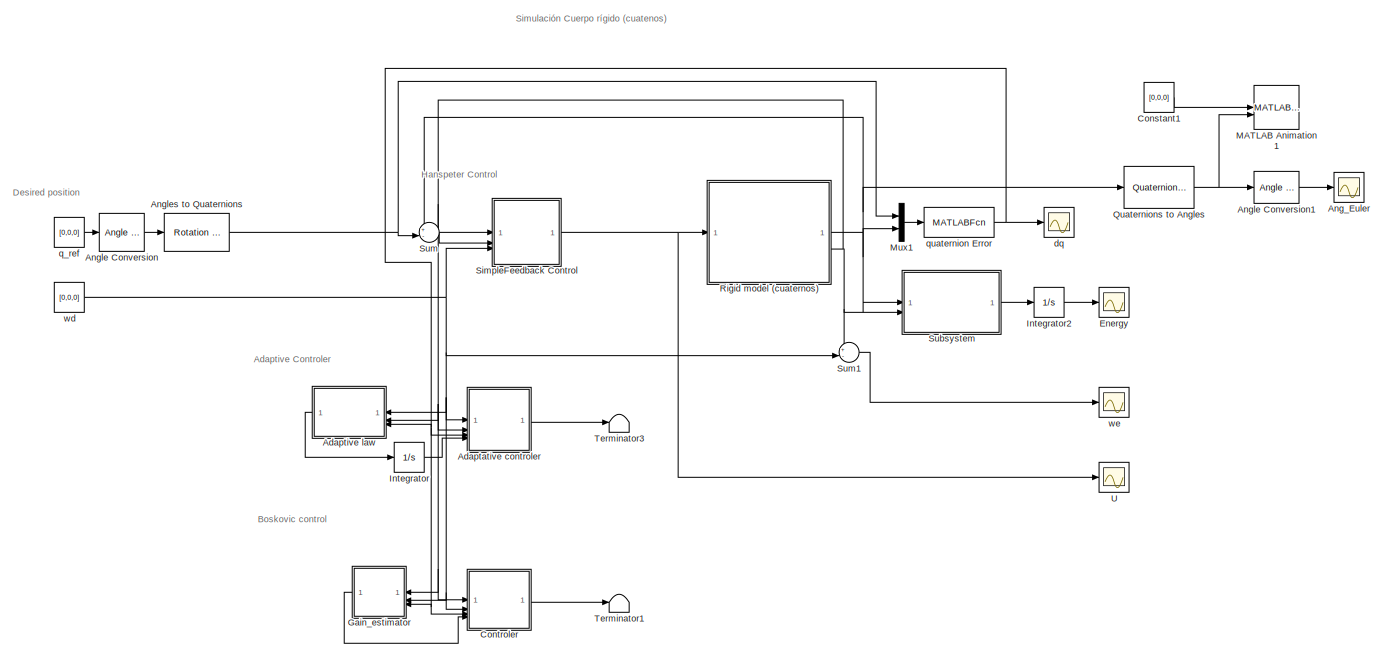
[diagram: root canvas - part 1/3, full width, top band]
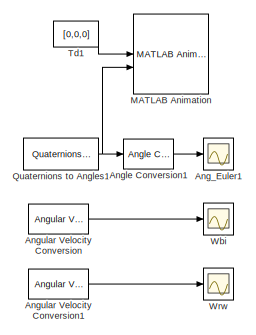
[diagram: root canvas - part 2/3, top right region]
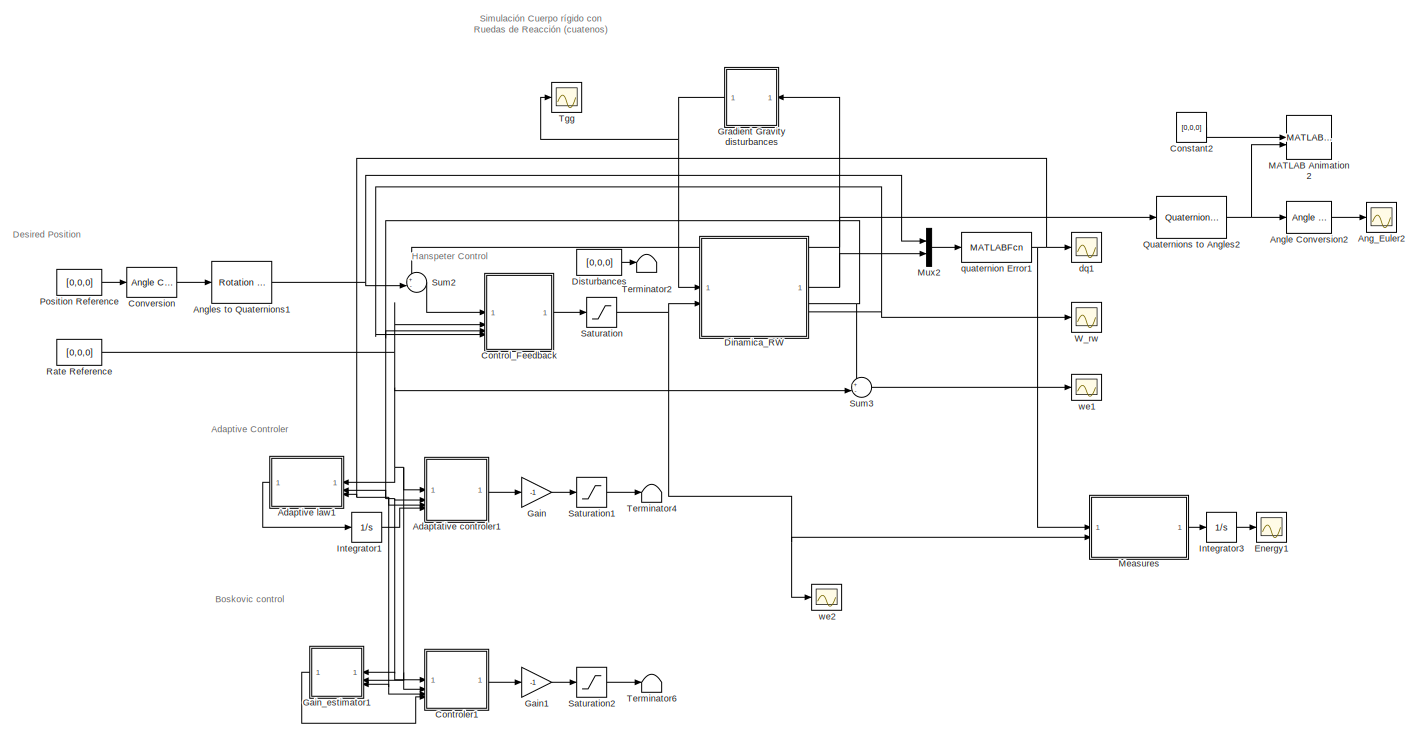
[diagram: root canvas - part 3/3, full width, bottom band]
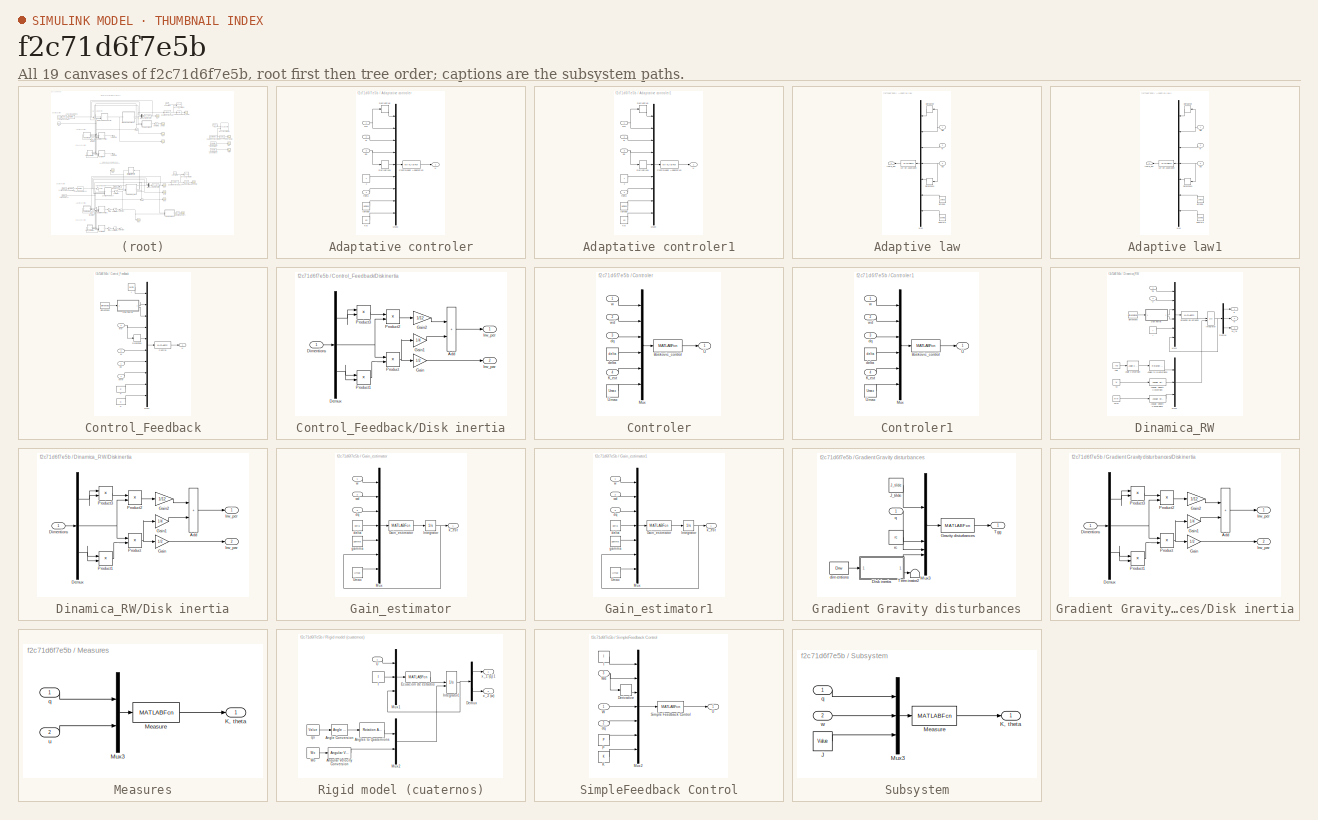
[diagram: thumbnail index - all 19 canvases of the model, root first then tree order]
MODEL slx_f2c71d6f7e5b
KIND model
CONFIG AbsTol = auto
CONFIG EnableMultiTasking = on
CONFIG FixedStep = 0.001
CONFIG MaxStep = auto
CONFIG MinStep = auto
CONFIG RelTol = 1e-3
CONFIG SampleTimeConstraint = Unconstrained
CONFIG SolverName = ode45
CONFIG StartTime = 0.0
CONFIG StopTime = 100
BLOCK [SubSystem] Adaptative controler
  Commented = on
BLOCK [MATLABFcn] Adaptative controler/Controlador Adaptativo
  MATLABFcn = Adaptive_controler(u(1),u(2),u(3),u(4),u(5),u(6),u(7),u(8),u(9),u(10),u(11),u(12),u(13),u(14),u(15),u(16),u(17),u(18),u(19),u(20),u(21),u(22),u(23),u(24),u(25),u(26),u(27),u(28),u(29),u(30),u(31))
BLOCK [Derivative] Adaptative controler/Derivative
BLOCK [Derivative] Adaptative controler/Derivative1
BLOCK [Constant] Adaptative controler/J
  Value = J
BLOCK [Constant] Adaptative controler/Kd
  Value = kd
BLOCK [Mux] Adaptative controler/Mux3
  DisplayOption = bar
  Inputs = 9
BLOCK [Outport] Adaptative controler/U
BLOCK [Inport] Adaptative controler/dq
  Port = 3
BLOCK [Constant] Adaptative controler/lambda
  Value = lambda
BLOCK [Inport] Adaptative controler/theta
  Port = 4
BLOCK [Inport] Adaptative controler/w
  Port = 2
BLOCK [Inport] Adaptative controler/wd
BLOCK [SubSystem] Adaptative controler1
BLOCK [MATLABFcn] Adaptative controler1/Controlador Adaptativo
  MATLABFcn = Adaptive_controler(u(1),u(2),u(3),u(4),u(5),u(6),u(7),u(8),u(9),u(10),u(11),u(12),u(13),u(14),u(15),u(16),u(17),u(18),u(19),u(20),u(21),u(22),u(23),u(24),u(25),u(26),u(27),u(28),u(29),u(30),u(31))
BLOCK [Derivative] Adaptative controler1/Derivative
BLOCK [Derivative] Adaptative controler1/Derivative1
BLOCK [Constant] Adaptative controler1/J
  Value = J
BLOCK [Constant] Adaptative controler1/Kd
  Value = kd
BLOCK [Mux] Adaptative controler1/Mux3
  DisplayOption = bar
  Inputs = 9
BLOCK [Outport] Adaptative controler1/U
BLOCK [Inport] Adaptative controler1/dq
  Port = 3
BLOCK [Constant] Adaptative controler1/lambda
  Value = lambda
BLOCK [Inport] Adaptative controler1/theta
  Port = 4
BLOCK [Inport] Adaptative controler1/w
  Port = 2
BLOCK [Inport] Adaptative controler1/wd
BLOCK [SubSystem] Adaptive law
  Commented = on
BLOCK [Derivative] Adaptive law/Derivative
BLOCK [Derivative] Adaptive law/Derivative1
BLOCK [MATLABFcn] Adaptive law/Ley de Adaptacion
  MATLABFcn = Ley_adaptacion(u(1),u(2),u(3),u(4),u(5),u(6),u(7),u(8),u(9),u(10),u(11),u(12),u(13),u(14),u(15),u(16),u(17),u(18),u(19))
BLOCK [Mux] Adaptive law/Mux
  DisplayOption = bar
  Inputs = 7
BLOCK [Inport] Adaptive law/dq
  Port = 3
BLOCK [Constant] Adaptive law/gamma
  Value = gamma
BLOCK [Constant] Adaptive law/lambda
  Value = Lambda
BLOCK [Outport] Adaptive law/theta_dot
  NameLocation = top
BLOCK [Inport] Adaptive law/w
  Port = 2
BLOCK [Inport] Adaptive law/wd
BLOCK [SubSystem] Adaptive law1
BLOCK [Derivative] Adaptive law1/Derivative
BLOCK [Derivative] Adaptive law1/Derivative1
BLOCK [MATLABFcn] Adaptive law1/Ley de Adaptacion
  MATLABFcn = Ley_adaptacion(u(1),u(2),u(3),u(4),u(5),u(6),u(7),u(8),u(9),u(10),u(11),u(12),u(13),u(14),u(15),u(16),u(17),u(18),u(19))
BLOCK [Mux] Adaptive law1/Mux
  DisplayOption = bar
  Inputs = 7
BLOCK [Inport] Adaptive law1/dq
  Port = 3
BLOCK [Constant] Adaptive law1/gamma
  Value = gamma
BLOCK [Constant] Adaptive law1/lambda
  Value = Lambda
BLOCK [Outport] Adaptive law1/theta_dot
  NameLocation = top
BLOCK [Inport] Adaptive law1/w
  Port = 2
BLOCK [Inport] Adaptive law1/wd
BLOCK [Scope] Ang_Euler
  Commented = on
  Floating = off
  NumInputPorts = 1
  ScopeSpecificationString = C++SS(StrPVP('Location','[10, 60, 1376, 738]'),StrPVP('Open','off'),StrPVP('ZoomMode','yonly'),MxPVP('AxesTitles',54,'struct(''axes1'',''%<SignalLabel>'')'),MxPVP('ScopeGraphics',57,'struct(''FigureColor'',''[0.5 0.5 0.5]'',''AxesColor'',''[0 0 0]'',''AxesTickColor'',''[1 1 1]'',''LineColors'',''[1 1 0;1 0 1;0 1 1;1 0 0;0 1 0;0 0 1]'',''LineStyles'',''-|-|-|-|-|-'',''LineWidths'',''[0.5 0.5 0.5 0....<+272ch>
BLOCK [Scope] Ang_Euler1
  Commented = on
  Floating = off
  NumInputPorts = 1
  ScopeSpecificationString = C++SS(StrPVP('Location','[10, 60, 1376, 738]'),StrPVP('Open','off'),MxPVP('AxesTitles',54,'struct(''axes1'',''%<SignalLabel>'')'),MxPVP('ScopeGraphics',57,'struct(''FigureColor'',''[0.5 0.5 0.5]'',''AxesColor'',''[0 0 0]'',''AxesTickColor'',''[1 1 1]'',''LineColors'',''[1 1 0;1 0 1;0 1 1;1 0 0;0 1 0;0 0 1]'',''LineStyles'',''-|-|-|-|-|-'',''LineWidths'',''[0.5 0.5 0.5 0.5 0.5 0.5]'',''MarkerStyles...<+215ch>
BLOCK [Scope] Ang_Euler2
  Floating = off
  NumInputPorts = 1
  ScopeSpecificationString = C++SS(StrPVP('Location','[10, 60, 1376, 738]'),StrPVP('Open','off'),MxPVP('AxesTitles',54,'struct(''axes1'',''%<SignalLabel>'')'),MxPVP('ScopeGraphics',57,'struct(''FigureColor'',''[0.5 0.5 0.5]'',''AxesColor'',''[0 0 0]'',''AxesTickColor'',''[1 1 1]'',''LineColors'',''[1 1 0;1 0 1;0 1 1;1 0 0;0 1 0;0 0 1]'',''LineStyles'',''-|-|-|-|-|-'',''LineWidths'',''[0.5 0.5 0.5 0.5 0.5 0.5]'',''MarkerStyles...<+265ch>
BLOCK [Reference] Angle Conversion  REF=aerolibconvert2/Angle Conversion
  Commented = on
  SourceBlock = aerolibconvert2/Angle Conversion
  SourceType = Angle Conversion
BLOCK [Reference] Angle Conversion1  REF=aerolibconvert2/Angle Conversion
  Commented = on
  SourceBlock = aerolibconvert2/Angle Conversion
  SourceType = Angle Conversion
BLOCK [Reference] Angle Conversion2  REF=aerolibconvert2/Angle Conversion
  SourceBlock = aerolibconvert2/Angle Conversion
  SourceType = Angle Conversion
BLOCK [Reference] Angles to Quaternions  REF=sharedtransform/Rotation Angles to Quaternions
  AttributesFormatString = Rotation Order: %<rotationOrder>
  Commented = on
  LibrarySourceBlock = aerolibtransform2/Rotation Angles to Quaternions
  SourceBlock = sharedtransform/Rotation Angles to Quaternions
  SourceType = Ang2Quat
BLOCK [Reference] Angles to Quaternions1  REF=sharedtransform/Rotation Angles to Quaternions
  AttributesFormatString = Rotation Order: %<rotationOrder>
  LibrarySourceBlock = aerolibtransform2/Rotation Angles to Quaternions
  SourceBlock = sharedtransform/Rotation Angles to Quaternions
  SourceType = Ang2Quat
BLOCK [Reference] Angular Velocity Conversion  REF=aerolibconvert2/Angular Velocity
Conversion
  Commented = on
  SourceBlock = aerolibconvert2/Angular Velocity\nConversion
  SourceType = Angular Velocity Conversion
BLOCK [Reference] Angular Velocity Conversion1  REF=aerolibconvert2/Angular Velocity
Conversion
  Commented = on
  SourceBlock = aerolibconvert2/Angular Velocity\nConversion
  SourceType = Angular Velocity Conversion
BLOCK [Constant] Constant1
  Commented = on
  Value = [0,0,0]
BLOCK [Constant] Constant2
  Commented = on
  Value = [0,0,0]
BLOCK [SubSystem] Control_Feedback
BLOCK [MATLABFcn] Control_Feedback/Control
  MATLABFcn = ControlFeedback_rw
BLOCK [Derivative] Control_Feedback/Derivative
BLOCK [SubSystem] Control_Feedback/Disk inertia
  NameLocation = top
BLOCK [Sum] Control_Feedback/Disk inertia/Add
  IconShape = rectangular
BLOCK [Demux] Control_Feedback/Disk inertia/Demux
  Outputs = 3
BLOCK [Inport] Control_Feedback/Disk inertia/Dimentions
BLOCK [Gain] Control_Feedback/Disk inertia/Gain
  Gain = 1/2
BLOCK [Gain] Control_Feedback/Disk inertia/Gain1
  Gain = 1/4
BLOCK [Gain] Control_Feedback/Disk inertia/Gain2
  Gain = 1/12
BLOCK [Outport] Control_Feedback/Disk inertia/Irw_par
  Port = 2
BLOCK [Outport] Control_Feedback/Disk inertia/Irw_per
BLOCK [Product] Control_Feedback/Disk inertia/Product
BLOCK [Product] Control_Feedback/Disk inertia/Product1
BLOCK [Product] Control_Feedback/Disk inertia/Product2
BLOCK [Product] Control_Feedback/Disk inertia/Product3
BLOCK [Constant] Control_Feedback/I
  Value = Inertia
BLOCK [Constant] Control_Feedback/K
  Value = K
BLOCK [Mux] Control_Feedback/Mux1
  DisplayOption = bar
  Inputs = 10
BLOCK [Constant] Control_Feedback/P
  Value = P
BLOCK [Outport] Control_Feedback/U
BLOCK [Inport] Control_Feedback/W
  Port = 3
BLOCK [Inport] Control_Feedback/Wrw
  Port = 4
BLOCK [Constant] Control_Feedback/dimentions
  Value = dimentios
BLOCK [Inport] Control_Feedback/dq
BLOCK [Inport] Control_Feedback/wd
  Port = 2
BLOCK [SubSystem] Controler
  Commented = on
BLOCK [MATLABFcn] Controler/Boskovic_control
  MATLABFcn = Boskovic_control
BLOCK [Inport] Controler/K_est
  Port = 4
BLOCK [Mux] Controler/Mux
  DisplayOption = bar
  Inputs = 6
BLOCK [Outport] Controler/U
BLOCK [Constant] Controler/Umax
  Value = Umax
BLOCK [Constant] Controler/delta
  Value = delta
BLOCK [Inport] Controler/dq
  Port = 3
BLOCK [Inport] Controler/w
BLOCK [Inport] Controler/wd
  Port = 2
BLOCK [SubSystem] Controler1
BLOCK [MATLABFcn] Controler1/Boskovic_control
  MATLABFcn = Boskovic_control
BLOCK [Inport] Controler1/K_est
  Port = 4
BLOCK [Mux] Controler1/Mux
  DisplayOption = bar
  Inputs = 6
BLOCK [Outport] Controler1/U
BLOCK [Constant] Controler1/Umax
  Value = Umax
BLOCK [Constant] Controler1/delta
  Value = delta
BLOCK [Inport] Controler1/dq
  Port = 3
BLOCK [Inport] Controler1/w
BLOCK [Inport] Controler1/wd
  Port = 2
BLOCK [Reference] Conversion  REF=aerolibconvert2/Angle Conversion
  SourceBlock = aerolibconvert2/Angle Conversion
  SourceType = Angle Conversion
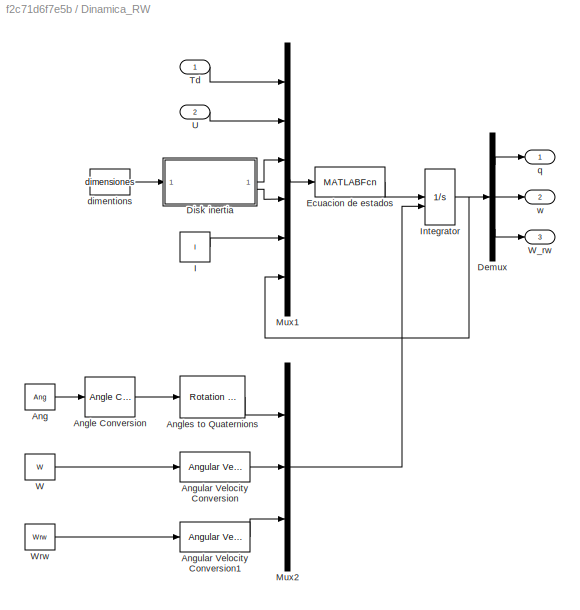
BLOCK [SubSystem] Dinamica_RW
BLOCK [Constant] Dinamica_RW/Ang
  Value = Ang
BLOCK [Reference] Dinamica_RW/Angle Conversion  REF=aerolibconvert2/Angle Conversion
  SourceBlock = aerolibconvert2/Angle Conversion
  SourceType = Angle Conversion
BLOCK [Reference] Dinamica_RW/Angles to Quaternions  REF=sharedtransform/Rotation Angles to Quaternions
  AttributesFormatString = Rotation Order: %<rotationOrder>
  LibrarySourceBlock = aerolibtransform2/Rotation Angles to Quaternions
  SourceBlock = sharedtransform/Rotation Angles to Quaternions
  SourceType = Ang2Quat
BLOCK [Reference] Dinamica_RW/Angular Velocity Conversion  REF=aerolibconvert2/Angular Velocity
Conversion
  SourceBlock = aerolibconvert2/Angular Velocity\nConversion
  SourceType = Angular Velocity Conversion
BLOCK [Reference] Dinamica_RW/Angular Velocity Conversion1  REF=aerolibconvert2/Angular Velocity
Conversion
  SourceBlock = aerolibconvert2/Angular Velocity\nConversion
  SourceType = Angular Velocity Conversion
BLOCK [Demux] Dinamica_RW/Demux
  Outputs = 3
BLOCK [SubSystem] Dinamica_RW/Disk inertia
  NameLocation = top
BLOCK [Sum] Dinamica_RW/Disk inertia/Add
  IconShape = rectangular
BLOCK [Demux] Dinamica_RW/Disk inertia/Demux
  Outputs = 3
BLOCK [Inport] Dinamica_RW/Disk inertia/Dimentions
BLOCK [Gain] Dinamica_RW/Disk inertia/Gain
  Gain = 1/2
BLOCK [Gain] Dinamica_RW/Disk inertia/Gain1
  Gain = 1/4
BLOCK [Gain] Dinamica_RW/Disk inertia/Gain2
  Gain = 1/12
BLOCK [Outport] Dinamica_RW/Disk inertia/Irw_par
  Port = 2
BLOCK [Outport] Dinamica_RW/Disk inertia/Irw_per
BLOCK [Product] Dinamica_RW/Disk inertia/Product
BLOCK [Product] Dinamica_RW/Disk inertia/Product1
BLOCK [Product] Dinamica_RW/Disk inertia/Product2
BLOCK [Product] Dinamica_RW/Disk inertia/Product3
BLOCK [MATLABFcn] Dinamica_RW/Ecuacion de estados
  MATLABFcn = Equation_state_rw
BLOCK [Constant] Dinamica_RW/I
  Value = I
BLOCK [Integrator] Dinamica_RW/Integrator
  InitialCondition = InitialCondition
  InitialConditionSource = external
BLOCK [Mux] Dinamica_RW/Mux1
  DisplayOption = bar
  Inputs = 6
BLOCK [Mux] Dinamica_RW/Mux2
  DisplayOption = bar
  Inputs = 3
BLOCK [Inport] Dinamica_RW/Td
BLOCK [Inport] Dinamica_RW/U
  Port = 2
BLOCK [Constant] Dinamica_RW/W
  Value = W
BLOCK [Outport] Dinamica_RW/W_rw
  Port = 3
BLOCK [Constant] Dinamica_RW/Wrw
  Value = Wrw
BLOCK [Constant] Dinamica_RW/dimentions
  Value = dimensiones
BLOCK [Outport] Dinamica_RW/q
BLOCK [Outport] Dinamica_RW/w 
  Port = 2
BLOCK [Constant] Disturbances
  Value = [0,0,0]
BLOCK [Scope] Energy
  Commented = on
  Floating = off
  NumInputPorts = 1
  ScopeSpecificationString = C++SS(StrPVP('Location','[10, 60, 1372, 727]'),StrPVP('Open','off'),MxPVP('AxesTitles',54,'struct(''axes1'',''%<SignalLabel>'')'),MxPVP('ScopeGraphics',57,'struct(''FigureColor'',''[0.5 0.5 0.5]'',''AxesColor'',''[0 0 0]'',''AxesTickColor'',''[1 1 1]'',''LineColors'',''[1 1 0;1 0 1;0 1 1;1 0 0;0 1 0;0 0 1]'',''LineStyles'',''-|-|-|-|-|-'',''LineWidths'',''[0.5 0.5 0.5 0.5 0.5 0.5]'',''MarkerStyles...<+305ch>
BLOCK [Scope] Energy1
  Floating = off
  NumInputPorts = 1
  ScopeSpecificationString = Simulink.scopes.TimeScopeBlockCfg('CurrentConfiguration', extmgr.ConfigurationSet(extmgr.Configuration('Core','General UI',true),extmgr.Configuration('Core','Source UI',true),extmgr.Configuration('Sources','WiredSimulink',true,'DataLogging',true,'DataLoggingVariableName','Energia3','DataLoggingLimitDataPoints',true,'DataLoggingSaveFormat','Array','DataLoggingDecimation','1','DataLoggingDecimateDat...<+1801ch>
BLOCK [Gain] Gain
  Gain = -1
BLOCK [Gain] Gain1
  Gain = -1
BLOCK [SubSystem] Gain_estimator
  Commented = on
BLOCK [MATLABFcn] Gain_estimator/Gain_estimator
  MATLABFcn = Gain_estimator
BLOCK [Integrator] Gain_estimator/Integrator
  InitialCondition = InitialCondition
BLOCK [Mux] Gain_estimator/Mux
  DisplayOption = bar
  Inputs = 7
BLOCK [Constant] Gain_estimator/Umax
  Value = Umax
BLOCK [Constant] Gain_estimator/delta
  Value = delta
BLOCK [Inport] Gain_estimator/dq
  Port = 3
BLOCK [Constant] Gain_estimator/gamma
  Value = gamma
BLOCK [Outport] Gain_estimator/k_est
BLOCK [Inport] Gain_estimator/w
BLOCK [Inport] Gain_estimator/wd
  Port = 2
BLOCK [SubSystem] Gain_estimator1
BLOCK [MATLABFcn] Gain_estimator1/Gain_estimator
  MATLABFcn = Gain_estimator
BLOCK [Integrator] Gain_estimator1/Integrator
  InitialCondition = InitialCondition
BLOCK [Mux] Gain_estimator1/Mux
  DisplayOption = bar
  Inputs = 7
BLOCK [Constant] Gain_estimator1/Umax
  Value = Umax
BLOCK [Constant] Gain_estimator1/delta
  Value = delta
BLOCK [Inport] Gain_estimator1/dq
  Port = 3
BLOCK [Constant] Gain_estimator1/gamma
  Value = gamma
BLOCK [Outport] Gain_estimator1/k_est
BLOCK [Inport] Gain_estimator1/w
BLOCK [Inport] Gain_estimator1/wd
  Port = 2
BLOCK [SubSystem] Gradient Gravity disturbances
BLOCK [SubSystem] Gradient Gravity disturbances/Disk inertia
  NameLocation = top
BLOCK [Sum] Gradient Gravity disturbances/Disk inertia/Add
  IconShape = rectangular
BLOCK [Demux] Gradient Gravity disturbances/Disk inertia/Demux
  Outputs = 3
BLOCK [Inport] Gradient Gravity disturbances/Disk inertia/Dimentions
BLOCK [Gain] Gradient Gravity disturbances/Disk inertia/Gain
  Gain = 1/2
BLOCK [Gain] Gradient Gravity disturbances/Disk inertia/Gain1
  Gain = 1/4
BLOCK [Gain] Gradient Gravity disturbances/Disk inertia/Gain2
  Gain = 1/12
BLOCK [Outport] Gradient Gravity disturbances/Disk inertia/Irw_par
  Port = 2
BLOCK [Outport] Gradient Gravity disturbances/Disk inertia/Irw_per
BLOCK [Product] Gradient Gravity disturbances/Disk inertia/Product
BLOCK [Product] Gradient Gravity disturbances/Disk inertia/Product1
BLOCK [Product] Gradient Gravity disturbances/Disk inertia/Product2
BLOCK [Product] Gradient Gravity disturbances/Disk inertia/Product3
BLOCK [MATLABFcn] Gradient Gravity disturbances/Gravity disturbances
  MATLABFcn = T_disturbances
BLOCK [Constant] Gradient Gravity disturbances/J_tilde
  Value = J_tilde
BLOCK [Mux] Gradient Gravity disturbances/Mux3
  DisplayOption = bar
BLOCK [Terminator] Gradient Gravity disturbances/Terminator2
BLOCK [Outport] Gradient Gravity disturbances/Tgg
BLOCK [Constant] Gradient Gravity disturbances/dimentions
  Value = Drw
BLOCK [Inport] Gradient Gravity disturbances/q
BLOCK [Constant] Gradient Gravity disturbances/rc
  Value = rc
BLOCK [Integrator] Integrator
  Commented = on
  InitialCondition = [1,1,1,0,0,0]
BLOCK [Integrator] Integrator1
  InitialCondition = [1,1,1,0,0,0]
BLOCK [Integrator] Integrator2
  Commented = on
BLOCK [Integrator] Integrator3
BLOCK [Reference] MATLAB Animation  REF=aerolibanim/MATLAB
Animation
  Commented = on
  SourceBlock = aerolibanim/MATLAB\nAnimation
  SourceType = AeroMATLABAnimation
  Tag = Matlab Animation 6 DOF
BLOCK [Reference] MATLAB Animation1  REF=aerolibanim/MATLAB
Animation
  Commented = on
  SourceBlock = aerolibanim/MATLAB\nAnimation
  SourceType = AeroMATLABAnimation
  Tag = Matlab Animation 6 DOF
BLOCK [Reference] MATLAB Animation2  REF=aerolibanim/MATLAB
Animation
  Commented = on
  SourceBlock = aerolibanim/MATLAB\nAnimation
  SourceType = AeroMATLABAnimation
  Tag = Matlab Animation 6 DOF
BLOCK [SubSystem] Measures
BLOCK [Outport] Measures/K, theta
BLOCK [MATLABFcn] Measures/Measure
  MATLABFcn = Measures
BLOCK [Mux] Measures/Mux3
  DisplayOption = bar
  Inputs = 2
BLOCK [Inport] Measures/q
BLOCK [Inport] Measures/u
  Port = 2
BLOCK [Mux] Mux1
  Commented = on
  DisplayOption = bar
  Inputs = 2
BLOCK [Mux] Mux2
  DisplayOption = bar
  Inputs = 2
BLOCK [Constant] Position Reference
  Value = [0,0,0]
BLOCK [Reference] Quaternions to Angles  REF=sharedtransform/Quaternions to Rotation Angles
  AttributesFormatString = Rotation Order: %<rotationOrder>
  Commented = on
  LibrarySourceBlock = aerolibtransform2/Quaternions to Rotation Angles
  SourceBlock = sharedtransform/Quaternions to Rotation Angles
  SourceType = Quat2Ang
BLOCK [Reference] Quaternions to Angles1  REF=sharedtransform/Quaternions to Rotation Angles
  AttributesFormatString = Rotation Order: %<rotationOrder>
  Commented = on
  LibrarySourceBlock = aerolibtransform2/Quaternions to Rotation Angles
  SourceBlock = sharedtransform/Quaternions to Rotation Angles
  SourceType = Quat2Ang
BLOCK [Reference] Quaternions to Angles2  REF=sharedtransform/Quaternions to Rotation Angles
  AttributesFormatString = Rotation Order: %<rotationOrder>
  LibrarySourceBlock = aerolibtransform2/Quaternions to Rotation Angles
  SourceBlock = sharedtransform/Quaternions to Rotation Angles
  SourceType = Quat2Ang
BLOCK [Constant] Rate Reference
  Value = [0,0,0]
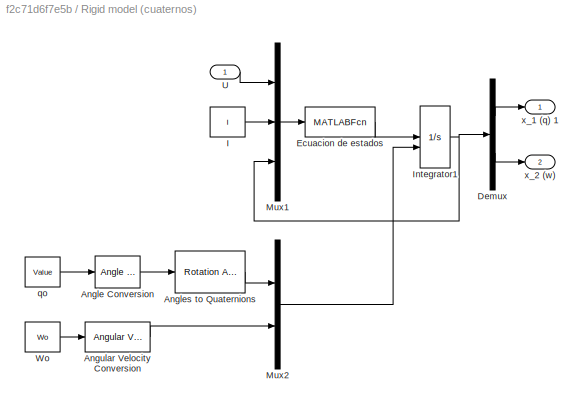
BLOCK [SubSystem] Rigid model (cuaternos)
  Commented = on
BLOCK [Reference] Rigid model (cuaternos)/Angle Conversion  REF=aerolibconvert2/Angle Conversion
  SourceBlock = aerolibconvert2/Angle Conversion
  SourceType = Angle Conversion
BLOCK [Reference] Rigid model (cuaternos)/Angles to Quaternions  REF=aerolibtransform2/Rotation Angles to Quaternions
  AttributesFormatString = Rotation Order: %<rotationOrder>
  SourceBlock = aerolibtransform2/Rotation Angles to Quaternions
  SourceType = Ang2Quat
BLOCK [Reference] Rigid model (cuaternos)/Angular Velocity Conversion  REF=aerolibconvert2/Angular Velocity
Conversion
  SourceBlock = aerolibconvert2/Angular Velocity\nConversion
  SourceType = Angular Velocity Conversion
BLOCK [Demux] Rigid model (cuaternos)/Demux
  Outputs = 2
BLOCK [MATLABFcn] Rigid model (cuaternos)/Ecuacion de estados
  MATLABFcn = Equation_state_quat(u(1),u(2),u(3),u(4),u(5),u(6),u(7),u(8),u(9),u(10),u(11),u(12),u(13),u(14),u(15),u(16))
BLOCK [Constant] Rigid model (cuaternos)/I
  Value = I
BLOCK [Integrator] Rigid model (cuaternos)/Integrator1
  InitialCondition = [1,0,0,0,0.5,0.1,0.2]
  InitialConditionSource = external
BLOCK [Mux] Rigid model (cuaternos)/Mux1
  DisplayOption = bar
  Inputs = 3
BLOCK [Mux] Rigid model (cuaternos)/Mux2
  DisplayOption = bar
  Inputs = 2
BLOCK [Inport] Rigid model (cuaternos)/U
BLOCK [Constant] Rigid model (cuaternos)/Wo
  Value = Wo
BLOCK [Constant] Rigid model (cuaternos)/qo
  Value = Value
BLOCK [Outport] Rigid model (cuaternos)/x_1 (q) 1
BLOCK [Outport] Rigid model (cuaternos)/x_2 (w) 
  Port = 2
BLOCK [Saturate] Saturation
  LowerLimit = -1.343*10^(-2)
  UpperLimit = 1.343*10^(-2)
BLOCK [Saturate] Saturation1
  LowerLimit = -1.343*10^(-2)
  UpperLimit = 1.343*10^(-2)
BLOCK [Saturate] Saturation2
  LowerLimit = -1.343*10^(-2)
  UpperLimit = 1.343*10^(-2)
BLOCK [SubSystem] SimpleFeedback Control
  Commented = on
BLOCK [Derivative] SimpleFeedback Control/Derivative
BLOCK [Constant] SimpleFeedback Control/I
  Value = I
BLOCK [Constant] SimpleFeedback Control/K
  Value = K
BLOCK [Mux] SimpleFeedback Control/Mux2
  DisplayOption = bar
  Inputs = 7
BLOCK [Constant] SimpleFeedback Control/P
  Value = P
BLOCK [MATLABFcn] SimpleFeedback Control/Simple Feedback Control
  MATLABFcn = ControlFeedback(u(1),u(2),u(3),u(4),u(5),u(6),u(7),u(8),u(9),u(10),u(11),u(12),u(13),u(14),u(15),u(16),u(17),u(18),u(19),u(20),u(21))
BLOCK [Outport] SimpleFeedback Control/U
BLOCK [Inport] SimpleFeedback Control/W
BLOCK [Inport] SimpleFeedback Control/Wd
  Port = 3
BLOCK [Inport] SimpleFeedback Control/dq
  Port = 2
BLOCK [SubSystem] Subsystem
  Commented = on
BLOCK [Constant] Subsystem/J
  Value = Value
BLOCK [Outport] Subsystem/K, theta
BLOCK [MATLABFcn] Subsystem/Measure
  MATLABFcn = Measures
BLOCK [Mux] Subsystem/Mux3
  DisplayOption = bar
  Inputs = 3
BLOCK [Inport] Subsystem/q
BLOCK [Inport] Subsystem/w
  Port = 2
BLOCK [Sum] Sum
  Commented = on
  Inputs = +-|
BLOCK [Sum] Sum1
  Commented = on
  Inputs = +-|
BLOCK [Sum] Sum2
  Inputs = +-|
BLOCK [Sum] Sum3
  Inputs = +-|
BLOCK [Constant] Td1
  Commented = on
  Value = [0,0,0]
BLOCK [Terminator] Terminator1
  Commented = on
BLOCK [Terminator] Terminator2
BLOCK [Terminator] Terminator3
  Commented = on
BLOCK [Terminator] Terminator4
BLOCK [Terminator] Terminator6
BLOCK [Scope] Tgg
  Floating = off
  NumInputPorts = 1
  ScopeSpecificationString = C++SS(StrPVP('Location','[10, 60, 1376, 738]'),StrPVP('Open','off'),StrPVP('ZoomMode','yonly'),MxPVP('AxesTitles',54,'struct(''axes1'',''%<SignalLabel>'')'),MxPVP('ScopeGraphics',57,'struct(''FigureColor'',''[0.501960784313725 0.501960784313725 0.501960784313725]'',''AxesColor'',''[0 0 0]'',''AxesTickColor'',''[1 1 1]'',''LineColors'',''[1 1 0;1 0 1;0 1 1;1 0 0;0 1 0;0 0 1]'',''LineStyles'',''-|-|...<+379ch>
BLOCK [Scope] U
  Commented = on
  Floating = off
  NumInputPorts = 1
  ScopeSpecificationString = C++SS(StrPVP('Location','[10, 60, 1376, 738]'),StrPVP('Open','off'),MxPVP('AxesTitles',54,'struct(''axes1'',''%<SignalLabel>'')'),MxPVP('ScopeGraphics',57,'struct(''FigureColor'',''[0.5 0.5 0.5]'',''AxesColor'',''[0 0 0]'',''AxesTickColor'',''[1 1 1]'',''LineColors'',''[1 1 0;1 0 1;0 1 1;1 0 0;0 1 0;0 0 1]'',''LineStyles'',''-|-|-|-|-|-'',''LineWidths'',''[0.5 0.5 0.5 0.5 0.5 0.5]'',''MarkerStyles...<+244ch>
BLOCK [Scope] W_rw
  Floating = off
  NumInputPorts = 1
  ScopeSpecificationString = C++SS(StrPVP('Location','[1, 49, 1367, 727]'),StrPVP('Open','off'),StrPVP('ZoomMode','yonly'),MxPVP('AxesTitles',54,'struct(''axes1'',''%<SignalLabel>'')'),MxPVP('ScopeGraphics',57,'struct(''FigureColor'',''[0.501960784313725 0.501960784313725 0.501960784313725]'',''AxesColor'',''[0 0 0]'',''AxesTickColor'',''[1 1 1]'',''LineColors'',''[1 1 0;1 0 1;0 1 1;1 0 0;0 1 0;0 0 1]'',''LineStyles'',''-|-|-...<+373ch>
BLOCK [Scope] Wbi
  Commented = on
  Floating = off
  NumInputPorts = 1
  ScopeSpecificationString = C++SS(StrPVP('Location','[10, 60, 1376, 738]'),StrPVP('Open','off'),MxPVP('AxesTitles',54,'struct(''axes1'',''%<SignalLabel>'')'),MxPVP('ScopeGraphics',57,'struct(''FigureColor'',''[0.5 0.5 0.5]'',''AxesColor'',''[0 0 0]'',''AxesTickColor'',''[1 1 1]'',''LineColors'',''[1 1 0;1 0 1;0 1 1;1 0 0;0 1 0;0 0 1]'',''LineStyles'',''-|-|-|-|-|-'',''LineWidths'',''[0.5 0.5 0.5 0.5 0.5 0.5]'',''MarkerStyles...<+195ch>
BLOCK [Scope] Wrw 
  Commented = on
  Floating = off
  NumInputPorts = 1
  ScopeSpecificationString = C++SS(StrPVP('Location','[10, 60, 1376, 738]'),StrPVP('Open','off'),MxPVP('AxesTitles',54,'struct(''axes1'',''%<SignalLabel>'')'),MxPVP('ScopeGraphics',57,'struct(''FigureColor'',''[0.5 0.5 0.5]'',''AxesColor'',''[0 0 0]'',''AxesTickColor'',''[1 1 1]'',''LineColors'',''[1 1 0;1 0 1;0 1 1;1 0 0;0 1 0;0 0 1]'',''LineStyles'',''-|-|-|-|-|-'',''LineWidths'',''[0.5 0.5 0.5 0.5 0.5 0.5]'',''MarkerStyles...<+241ch>
BLOCK [Scope] dq
  Commented = on
  Floating = off
  NumInputPorts = 1
  ScopeSpecificationString = C++SS(StrPVP('Location','[10, 60, 1372, 727]'),StrPVP('Open','off'),MxPVP('AxesTitles',54,'struct(''axes1'',''%<SignalLabel>'')'),MxPVP('ScopeGraphics',57,'struct(''FigureColor'',''[0.5 0.5 0.5]'',''AxesColor'',''[0 0 0]'',''AxesTickColor'',''[1 1 1]'',''LineColors'',''[1 1 0;1 0 1;0 1 1;1 0 0;0 1 0;0 0 1]'',''LineStyles'',''-|-|-|-|-|-'',''LineWidths'',''[0.5 0.5 0.5 0.5 0.5 0.5]'',''MarkerStyles...<+304ch>
BLOCK [Scope] dq1
  Floating = off
  NumInputPorts = 1
  ScopeSpecificationString = C++SS(StrPVP('Location','[10, 60, 1376, 738]'),StrPVP('Open','off'),MxPVP('AxesTitles',54,'struct(''axes1'',''%<SignalLabel>'')'),MxPVP('ScopeGraphics',57,'struct(''FigureColor'',''[0.5 0.5 0.5]'',''AxesColor'',''[0 0 0]'',''AxesTickColor'',''[1 1 1]'',''LineColors'',''[1 1 0;1 0 1;0 1 1;1 0 0;0 1 0;0 0 1]'',''LineStyles'',''-|-|-|-|-|-'',''LineWidths'',''[0.5 0.5 0.5 0.5 0.5 0.5]'',''MarkerStyles...<+306ch>
BLOCK [Constant] q_ref
  Commented = on
  Value = [0,0,0]
BLOCK [MATLABFcn] quaternion Error
  Commented = on
  MATLABFcn = Error_quaternio(u(1),u(2),u(3),u(4),u(5),u(6),u(7),u(8))
BLOCK [MATLABFcn] quaternion Error1
  MATLABFcn = Error_quaternio(u(1),u(2),u(3),u(4),u(5),u(6),u(7),u(8))
BLOCK [Constant] wd
  Commented = on
  Value = [0,0,0]
BLOCK [Scope] we
  Commented = on
  Floating = off
  NumInputPorts = 1
  ScopeSpecificationString = C++SS(StrPVP('Location','[1, 49, 1367, 727]'),StrPVP('Open','off'),MxPVP('AxesTitles',54,'struct(''axes1'',''%<SignalLabel>'')'),MxPVP('ScopeGraphics',57,'struct(''FigureColor'',''[0.5 0.5 0.5]'',''AxesColor'',''[0 0 0]'',''AxesTickColor'',''[1 1 1]'',''LineColors'',''[1 1 0;1 0 1;0 1 1;1 0 0;0 1 0;0 0 1]'',''LineStyles'',''-|-|-|-|-|-'',''LineWidths'',''[0.5 0.5 0.5 0.5 0.5 0.5]'',''MarkerStyles'...<+213ch>
BLOCK [Scope] we1
  Floating = off
  NumInputPorts = 1
  ScopeSpecificationString = C++SS(StrPVP('Location','[1, 49, 1367, 727]'),StrPVP('Open','off'),StrPVP('ZoomMode','xonly'),MxPVP('AxesTitles',54,'struct(''axes1'',''%<SignalLabel>'')'),MxPVP('ScopeGraphics',57,'struct(''FigureColor'',''[0.501960784313725 0.501960784313725 0.501960784313725]'',''AxesColor'',''[0 0 0]'',''AxesTickColor'',''[1 1 1]'',''LineColors'',''[1 1 0;1 0 1;0 1 1;1 0 0;0 1 0;0 0 1]'',''LineStyles'',''-|-|-...<+336ch>
BLOCK [Scope] we2
  Floating = off
  NumInputPorts = 1
  ScopeSpecificationString = Simulink.scopes.TimeScopeBlockCfg('CurrentConfiguration', extmgr.ConfigurationSet(extmgr.Configuration('Core','General UI',true),extmgr.Configuration('Core','Source UI',true),extmgr.Configuration('Sources','WiredSimulink',true,'DataLogging',true,'DataLoggingVariableName','we','DataLoggingLimitDataPoints',true,'DataLoggingSaveFormat','Array','DataLoggingDecimation','1','DataLoggingDecimateData',tru...<+1755ch>
ANNOTATION (root): Simulación Cuerpo rígido con Ruedas de Reacción (cuatenos)
ANNOTATION (root): Simulación Cuerpo rígido (cuatenos)
ANNOTATION (root): Adaptive Controler
ANNOTATION (root): Boskovic control
ANNOTATION (root): Desired Position
ANNOTATION (root): Desired position
ANNOTATION (root): Hanspeter Control
LINE Adaptative controler/Controlador Adaptativo:1 -> Adaptative controler/U:1
LINE Adaptative controler/Derivative1:1 -> Adaptative controler/Mux3:5
LINE Adaptative controler/Derivative:1 -> Adaptative controler/Mux3:1
LINE Adaptative controler/J:1 -> Adaptative controler/Mux3:6
LINE Adaptative controler/Kd:1 -> Adaptative controler/Mux3:9
LINE Adaptative controler/Mux3:1 -> Adaptative controler/Controlador Adaptativo:1
NET Adaptative controler/dq:1 -> Adaptative controler/Derivative1:1, Adaptative controler/Mux3:4
LINE Adaptative controler/lambda:1 -> Adaptative controler/Mux3:8
LINE Adaptative controler/theta:1 -> Adaptative controler/Mux3:7
LINE Adaptative controler/w:1 -> Adaptative controler/Mux3:3
NET Adaptative controler/wd:1 -> Adaptative controler/Derivative:1, Adaptative controler/Mux3:2
LINE Adaptative controler1/Controlador Adaptativo:1 -> Adaptative controler1/U:1
LINE Adaptative controler1/Derivative1:1 -> Adaptative controler1/Mux3:5
LINE Adaptative controler1/Derivative:1 -> Adaptative controler1/Mux3:1
LINE Adaptative controler1/J:1 -> Adaptative controler1/Mux3:6
LINE Adaptative controler1/Kd:1 -> Adaptative controler1/Mux3:9
LINE Adaptative controler1/Mux3:1 -> Adaptative controler1/Controlador Adaptativo:1
NET Adaptative controler1/dq:1 -> Adaptative controler1/Derivative1:1, Adaptative controler1/Mux3:4
LINE Adaptative controler1/lambda:1 -> Adaptative controler1/Mux3:8
LINE Adaptative controler1/theta:1 -> Adaptative controler1/Mux3:7
LINE Adaptative controler1/w:1 -> Adaptative controler1/Mux3:3
NET Adaptative controler1/wd:1 -> Adaptative controler1/Derivative:1, Adaptative controler1/Mux3:2
LINE Adaptative controler1:1 -> Gain:1
LINE Adaptative controler:1 -> Terminator3:1
LINE Adaptive law/Derivative1:1 -> Adaptive law/Mux:5
LINE Adaptive law/Derivative:1 -> Adaptive law/Mux:1
LINE Adaptive law/Ley de Adaptacion:1 -> Adaptive law/theta_dot:1
LINE Adaptive law/Mux:1 -> Adaptive law/Ley de Adaptacion:1
NET Adaptive law/dq:1 -> Adaptive law/Derivative1:1, Adaptive law/Mux:4
LINE Adaptive law/gamma:1 -> Adaptive law/Mux:7
LINE Adaptive law/lambda:1 -> Adaptive law/Mux:6
LINE Adaptive law/w:1 -> Adaptive law/Mux:3
NET Adaptive law/wd:1 -> Adaptive law/Derivative:1, Adaptive law/Mux:2
LINE Adaptive law1/Derivative1:1 -> Adaptive law1/Mux:5
LINE Adaptive law1/Derivative:1 -> Adaptive law1/Mux:1
LINE Adaptive law1/Ley de Adaptacion:1 -> Adaptive law1/theta_dot:1
LINE Adaptive law1/Mux:1 -> Adaptive law1/Ley de Adaptacion:1
NET Adaptive law1/dq:1 -> Adaptive law1/Derivative1:1, Adaptive law1/Mux:4
LINE Adaptive law1/gamma:1 -> Adaptive law1/Mux:7
LINE Adaptive law1/lambda:1 -> Adaptive law1/Mux:6
LINE Adaptive law1/w:1 -> Adaptive law1/Mux:3
NET Adaptive law1/wd:1 -> Adaptive law1/Derivative:1, Adaptive law1/Mux:2
LINE Adaptive law1:1 -> Integrator1:1
LINE Adaptive law:1 -> Integrator:1
NET Angle Conversion1:1 -> Ang_Euler1:1, Ang_Euler:1
LINE Angle Conversion2:1 -> Ang_Euler2:1
LINE Angle Conversion:1 -> Angles to Quaternions:1
NET Angles to Quaternions1:1 -> Mux2:1, Sum2:2
NET Angles to Quaternions:1 -> Mux1:1, Sum:2
LINE Angular Velocity Conversion1:1 -> Wrw :1
LINE Angular Velocity Conversion:1 -> Wbi:1
LINE Constant1:1 -> MATLAB Animation1:1
LINE Constant2:1 -> MATLAB Animation2:1
LINE Control_Feedback/Control:1 -> Control_Feedback/U:1
LINE Control_Feedback/Derivative:1 -> Control_Feedback/Mux1:5
LINE Control_Feedback/Disk inertia/Add:1 -> Control_Feedback/Disk inertia/Irw_per:1
NET Control_Feedback/Disk inertia/Demux:1 -> Control_Feedback/Disk inertia/Product3:1, Control_Feedback/Disk inertia/Product3:2
NET Control_Feedback/Disk inertia/Demux:2 -> Control_Feedback/Disk inertia/Product2:2, Control_Feedback/Disk inertia/Product:1
NET Control_Feedback/Disk inertia/Demux:3 -> Control_Feedback/Disk inertia/Product1:1, Control_Feedback/Disk inertia/Product1:2
LINE Control_Feedback/Disk inertia/Dimentions:1 -> Control_Feedback/Disk inertia/Demux:1
LINE Control_Feedback/Disk inertia/Gain1:1 -> Control_Feedback/Disk inertia/Add:2
LINE Control_Feedback/Disk inertia/Gain2:1 -> Control_Feedback/Disk inertia/Add:1
LINE Control_Feedback/Disk inertia/Gain:1 -> Control_Feedback/Disk inertia/Irw_par:1
LINE Control_Feedback/Disk inertia/Product1:1 -> Control_Feedback/Disk inertia/Product:2
LINE Control_Feedback/Disk inertia/Product2:1 -> Control_Feedback/Disk inertia/Gain2:1
LINE Control_Feedback/Disk inertia/Product3:1 -> Control_Feedback/Disk inertia/Product2:1
NET Control_Feedback/Disk inertia/Product:1 -> Control_Feedback/Disk inertia/Gain1:1, Control_Feedback/Disk inertia/Gain:1
LINE Control_Feedback/Disk inertia:1 -> Control_Feedback/Mux1:2
LINE Control_Feedback/Disk inertia:2 -> Control_Feedback/Mux1:3
LINE Control_Feedback/I:1 -> Control_Feedback/Mux1:1
LINE Control_Feedback/K:1 -> Control_Feedback/Mux1:10
LINE Control_Feedback/Mux1:1 -> Control_Feedback/Control:1
LINE Control_Feedback/P:1 -> Control_Feedback/Mux1:9
LINE Control_Feedback/W:1 -> Control_Feedback/Mux1:6
LINE Control_Feedback/Wrw:1 -> Control_Feedback/Mux1:8
LINE Control_Feedback/dimentions:1 -> Control_Feedback/Disk inertia:1
LINE Control_Feedback/dq:1 -> Control_Feedback/Mux1:7
NET Control_Feedback/wd:1 -> Control_Feedback/Derivative:1, Control_Feedback/Mux1:4
LINE Control_Feedback:1 -> Saturation:1
LINE Controler/Boskovic_control:1 -> Controler/U:1
LINE Controler/K_est:1 -> Controler/Mux:5
LINE Controler/Mux:1 -> Controler/Boskovic_control:1
LINE Controler/Umax:1 -> Controler/Mux:6
LINE Controler/delta:1 -> Controler/Mux:4
LINE Controler/dq:1 -> Controler/Mux:3
LINE Controler/w:1 -> Controler/Mux:1
LINE Controler/wd:1 -> Controler/Mux:2
LINE Controler1/Boskovic_control:1 -> Controler1/U:1
LINE Controler1/K_est:1 -> Controler1/Mux:5
LINE Controler1/Mux:1 -> Controler1/Boskovic_control:1
LINE Controler1/Umax:1 -> Controler1/Mux:6
LINE Controler1/delta:1 -> Controler1/Mux:4
LINE Controler1/dq:1 -> Controler1/Mux:3
LINE Controler1/w:1 -> Controler1/Mux:1
LINE Controler1/wd:1 -> Controler1/Mux:2
LINE Controler1:1 -> Gain1:1
LINE Controler:1 -> Terminator1:1
LINE Conversion:1 -> Angles to Quaternions1:1
LINE Dinamica_RW/Ang:1 -> Dinamica_RW/Angle Conversion:1
LINE Dinamica_RW/Angle Conversion:1 -> Dinamica_RW/Angles to Quaternions:1
LINE Dinamica_RW/Angles to Quaternions:1 -> Dinamica_RW/Mux2:1
LINE Dinamica_RW/Angular Velocity Conversion1:1 -> Dinamica_RW/Mux2:3
LINE Dinamica_RW/Angular Velocity Conversion:1 -> Dinamica_RW/Mux2:2
LINE Dinamica_RW/Demux:1 -> Dinamica_RW/q:1
LINE Dinamica_RW/Demux:2 -> Dinamica_RW/w :1
LINE Dinamica_RW/Demux:3 -> Dinamica_RW/W_rw:1
LINE Dinamica_RW/Disk inertia/Add:1 -> Dinamica_RW/Disk inertia/Irw_per:1
NET Dinamica_RW/Disk inertia/Demux:1 -> Dinamica_RW/Disk inertia/Product3:1, Dinamica_RW/Disk inertia/Product3:2
NET Dinamica_RW/Disk inertia/Demux:2 -> Dinamica_RW/Disk inertia/Product2:2, Dinamica_RW/Disk inertia/Product:1
NET Dinamica_RW/Disk inertia/Demux:3 -> Dinamica_RW/Disk inertia/Product1:1, Dinamica_RW/Disk inertia/Product1:2
LINE Dinamica_RW/Disk inertia/Dimentions:1 -> Dinamica_RW/Disk inertia/Demux:1
LINE Dinamica_RW/Disk inertia/Gain1:1 -> Dinamica_RW/Disk inertia/Add:2
LINE Dinamica_RW/Disk inertia/Gain2:1 -> Dinamica_RW/Disk inertia/Add:1
LINE Dinamica_RW/Disk inertia/Gain:1 -> Dinamica_RW/Disk inertia/Irw_par:1
LINE Dinamica_RW/Disk inertia/Product1:1 -> Dinamica_RW/Disk inertia/Product:2
LINE Dinamica_RW/Disk inertia/Product2:1 -> Dinamica_RW/Disk inertia/Gain2:1
LINE Dinamica_RW/Disk inertia/Product3:1 -> Dinamica_RW/Disk inertia/Product2:1
NET Dinamica_RW/Disk inertia/Product:1 -> Dinamica_RW/Disk inertia/Gain1:1, Dinamica_RW/Disk inertia/Gain:1
LINE Dinamica_RW/Disk inertia:1 -> Dinamica_RW/Mux1:3
LINE Dinamica_RW/Disk inertia:2 -> Dinamica_RW/Mux1:4
LINE Dinamica_RW/Ecuacion de estados:1 -> Dinamica_RW/Integrator:1
LINE Dinamica_RW/I:1 -> Dinamica_RW/Mux1:5
NET Dinamica_RW/Integrator:1 -> Dinamica_RW/Demux:1, Dinamica_RW/Mux1:6
LINE Dinamica_RW/Mux1:1 -> Dinamica_RW/Ecuacion de estados:1
LINE Dinamica_RW/Mux2:1 -> Dinamica_RW/Integrator:2
LINE Dinamica_RW/Td:1 -> Dinamica_RW/Mux1:1
LINE Dinamica_RW/U:1 -> Dinamica_RW/Mux1:2
LINE Dinamica_RW/W:1 -> Dinamica_RW/Angular Velocity Conversion:1
LINE Dinamica_RW/Wrw:1 -> Dinamica_RW/Angular Velocity Conversion1:1
LINE Dinamica_RW/dimentions:1 -> Dinamica_RW/Disk inertia:1
NET Dinamica_RW:1 -> Gradient Gravity disturbances:1, Mux2:2, Quaternions to Angles2:1, Sum2:1
NET Dinamica_RW:2 -> Adaptative controler1:2, Adaptive law1:2, Control_Feedback:3, Controler1:1, Gain_estimator1:1, Sum3:1
NET Dinamica_RW:3 -> Control_Feedback:4, W_rw:1
LINE Disturbances:1 -> Terminator2:1
LINE Gain1:1 -> Saturation2:1
LINE Gain:1 -> Saturation1:1
LINE Gain_estimator/Gain_estimator:1 -> Gain_estimator/Integrator:1
NET Gain_estimator/Integrator:1 -> Gain_estimator/Mux:6, Gain_estimator/k_est:1
LINE Gain_estimator/Mux:1 -> Gain_estimator/Gain_estimator:1
LINE Gain_estimator/Umax:1 -> Gain_estimator/Mux:7
LINE Gain_estimator/delta:1 -> Gain_estimator/Mux:4
LINE Gain_estimator/dq:1 -> Gain_estimator/Mux:3
LINE Gain_estimator/gamma:1 -> Gain_estimator/Mux:5
LINE Gain_estimator/w:1 -> Gain_estimator/Mux:1
LINE Gain_estimator/wd:1 -> Gain_estimator/Mux:2
LINE Gain_estimator1/Gain_estimator:1 -> Gain_estimator1/Integrator:1
NET Gain_estimator1/Integrator:1 -> Gain_estimator1/Mux:6, Gain_estimator1/k_est:1
LINE Gain_estimator1/Mux:1 -> Gain_estimator1/Gain_estimator:1
LINE Gain_estimator1/Umax:1 -> Gain_estimator1/Mux:7
LINE Gain_estimator1/delta:1 -> Gain_estimator1/Mux:4
LINE Gain_estimator1/dq:1 -> Gain_estimator1/Mux:3
LINE Gain_estimator1/gamma:1 -> Gain_estimator1/Mux:5
LINE Gain_estimator1/w:1 -> Gain_estimator1/Mux:1
LINE Gain_estimator1/wd:1 -> Gain_estimator1/Mux:2
LINE Gain_estimator1:1 -> Controler1:4
LINE Gain_estimator:1 -> Controler:4
LINE Gradient Gravity disturbances/Disk inertia/Add:1 -> Gradient Gravity disturbances/Disk inertia/Irw_per:1
NET Gradient Gravity disturbances/Disk inertia/Demux:1 -> Gradient Gravity disturbances/Disk inertia/Product3:1, Gradient Gravity disturbances/Disk inertia/Product3:2
NET Gradient Gravity disturbances/Disk inertia/Demux:2 -> Gradient Gravity disturbances/Disk inertia/Product2:2, Gradient Gravity disturbances/Disk inertia/Product:1
NET Gradient Gravity disturbances/Disk inertia/Demux:3 -> Gradient Gravity disturbances/Disk inertia/Product1:1, Gradient Gravity disturbances/Disk inertia/Product1:2
LINE Gradient Gravity disturbances/Disk inertia/Dimentions:1 -> Gradient Gravity disturbances/Disk inertia/Demux:1
LINE Gradient Gravity disturbances/Disk inertia/Gain1:1 -> Gradient Gravity disturbances/Disk inertia/Add:2
LINE Gradient Gravity disturbances/Disk inertia/Gain2:1 -> Gradient Gravity disturbances/Disk inertia/Add:1
LINE Gradient Gravity disturbances/Disk inertia/Gain:1 -> Gradient Gravity disturbances/Disk inertia/Irw_par:1
LINE Gradient Gravity disturbances/Disk inertia/Product1:1 -> Gradient Gravity disturbances/Disk inertia/Product:2
LINE Gradient Gravity disturbances/Disk inertia/Product2:1 -> Gradient Gravity disturbances/Disk inertia/Gain2:1
LINE Gradient Gravity disturbances/Disk inertia/Product3:1 -> Gradient Gravity disturbances/Disk inertia/Product2:1
NET Gradient Gravity disturbances/Disk inertia/Product:1 -> Gradient Gravity disturbances/Disk inertia/Gain1:1, Gradient Gravity disturbances/Disk inertia/Gain:1
LINE Gradient Gravity disturbances/Disk inertia:1 -> Gradient Gravity disturbances/Mux3:4
LINE Gradient Gravity disturbances/Disk inertia:2 -> Gradient Gravity disturbances/Terminator2:1
LINE Gradient Gravity disturbances/Gravity disturbances:1 -> Gradient Gravity disturbances/Tgg:1
LINE Gradient Gravity disturbances/J_tilde:1 -> Gradient Gravity disturbances/Mux3:1
LINE Gradient Gravity disturbances/Mux3:1 -> Gradient Gravity disturbances/Gravity disturbances:1
LINE Gradient Gravity disturbances/dimentions:1 -> Gradient Gravity disturbances/Disk inertia:1
LINE Gradient Gravity disturbances/q:1 -> Gradient Gravity disturbances/Mux3:2
LINE Gradient Gravity disturbances/rc:1 -> Gradient Gravity disturbances/Mux3:3
NET Gradient Gravity disturbances:1 -> Dinamica_RW:1, Tgg:1
LINE Integrator1:1 -> Adaptative controler1:4
LINE Integrator2:1 -> Energy:1
LINE Integrator3:1 -> Energy1:1
LINE Integrator:1 -> Adaptative controler:4
LINE Measures/Measure:1 -> Measures/K, theta:1
LINE Measures/Mux3:1 -> Measures/Measure:1
LINE Measures/q:1 -> Measures/Mux3:1
LINE Measures/u:1 -> Measures/Mux3:2
LINE Measures:1 -> Integrator3:1
LINE Mux1:1 -> quaternion Error:1
LINE Mux2:1 -> quaternion Error1:1
LINE Position Reference:1 -> Conversion:1
NET Quaternions to Angles1:1 -> Angle Conversion1:1, MATLAB Animation:2
NET Quaternions to Angles2:1 -> Angle Conversion2:1, MATLAB Animation2:2
NET Quaternions to Angles:1 -> Angle Conversion1:1, MATLAB Animation1:2
NET Rate Reference:1 -> Adaptative controler1:1, Adaptive law1:1, Control_Feedback:2, Controler1:2, Gain_estimator1:2, Sum3:2
LINE Rigid model (cuaternos)/Angle Conversion:1 -> Rigid model (cuaternos)/Angles to Quaternions:1
LINE Rigid model (cuaternos)/Angles to Quaternions:1 -> Rigid model (cuaternos)/Mux2:1
LINE Rigid model (cuaternos)/Angular Velocity Conversion:1 -> Rigid model (cuaternos)/Mux2:2
LINE Rigid model (cuaternos)/Demux:1 -> Rigid model (cuaternos)/x_1 (q) 1:1
LINE Rigid model (cuaternos)/Demux:2 -> Rigid model (cuaternos)/x_2 (w) :1
LINE Rigid model (cuaternos)/Ecuacion de estados:1 -> Rigid model (cuaternos)/Integrator1:1
LINE Rigid model (cuaternos)/I:1 -> Rigid model (cuaternos)/Mux1:2
NET Rigid model (cuaternos)/Integrator1:1 -> Rigid model (cuaternos)/Demux:1, Rigid model (cuaternos)/Mux1:3
LINE Rigid model (cuaternos)/Mux1:1 -> Rigid model (cuaternos)/Ecuacion de estados:1
LINE Rigid model (cuaternos)/Mux2:1 -> Rigid model (cuaternos)/Integrator1:2
LINE Rigid model (cuaternos)/U:1 -> Rigid model (cuaternos)/Mux1:1
LINE Rigid model (cuaternos)/Wo:1 -> Rigid model (cuaternos)/Angular Velocity Conversion:1
LINE Rigid model (cuaternos)/qo:1 -> Rigid model (cuaternos)/Angle Conversion:1
NET Rigid model (cuaternos):1 -> Mux1:2, Quaternions to Angles:1, Subsystem:1, Sum:1
NET Rigid model (cuaternos):2 -> Adaptative controler:2, Adaptive law:2, Controler:1, Gain_estimator:1, SimpleFeedback Control:1, Subsystem:2, Sum1:1
LINE Saturation1:1 -> Terminator4:1
LINE Saturation2:1 -> Terminator6:1
NET Saturation:1 -> Dinamica_RW:2, Measures:2, we2:1
LINE SimpleFeedback Control/Derivative:1 -> SimpleFeedback Control/Mux2:3
LINE SimpleFeedback Control/I:1 -> SimpleFeedback Control/Mux2:1
LINE SimpleFeedback Control/K:1 -> SimpleFeedback Control/Mux2:7
LINE SimpleFeedback Control/Mux2:1 -> SimpleFeedback Control/Simple Feedback Control:1
LINE SimpleFeedback Control/P:1 -> SimpleFeedback Control/Mux2:6
LINE SimpleFeedback Control/Simple Feedback Control:1 -> SimpleFeedback Control/U:1
LINE SimpleFeedback Control/W:1 -> SimpleFeedback Control/Mux2:4
NET SimpleFeedback Control/Wd:1 -> SimpleFeedback Control/Derivative:1, SimpleFeedback Control/Mux2:2
LINE SimpleFeedback Control/dq:1 -> SimpleFeedback Control/Mux2:5
NET SimpleFeedback Control:1 -> Rigid model (cuaternos):1, U:1
LINE Subsystem/J:1 -> Subsystem/Mux3:3
LINE Subsystem/Measure:1 -> Subsystem/K, theta:1
LINE Subsystem/Mux3:1 -> Subsystem/Measure:1
LINE Subsystem/q:1 -> Subsystem/Mux3:1
LINE Subsystem/w:1 -> Subsystem/Mux3:2
LINE Subsystem:1 -> Integrator2:1
LINE Sum1:1 -> we:1
LINE Sum2:1 -> Control_Feedback:1
LINE Sum3:1 -> we1:1
LINE Sum:1 -> SimpleFeedback Control:2
LINE Td1:1 -> MATLAB Animation:1
LINE q_ref:1 -> Angle Conversion:1
NET quaternion Error1:1 -> Adaptative controler1:3, Adaptive law1:3, Controler1:3, Gain_estimator1:3, Measures:1, dq1:1
NET quaternion Error:1 -> Adaptative controler:3, Adaptive law:3, Controler:3, Gain_estimator:3, dq:1
NET wd:1 -> Adaptative controler:1, Adaptive law:1, Controler:2, Gain_estimator:2, SimpleFeedback Control:3, Sum1:2
note: NET lines group one-source signal fan-out (src -> all destinations, sorted); 1:1 wires keep LINE
